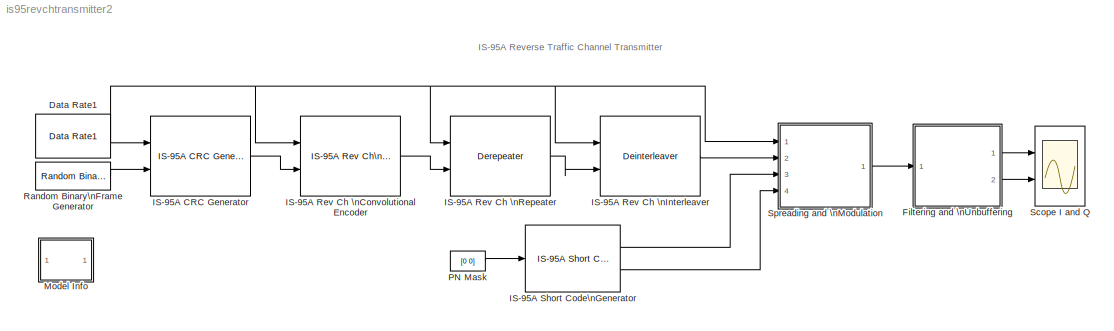
MODEL is95revchtransmitter2
KIND model
CONFIG AbsTol = 1e-6
CONFIG FixedStep = auto
CONFIG MaxStep = auto
CONFIG MinStep = auto
CONFIG RelTol = 1e-3
CONFIG Solver = VariableStepDiscrete
CONFIG SolverMode = SingleTasking
CONFIG StartTime = 0.0
CONFIG StopTime = 0.1
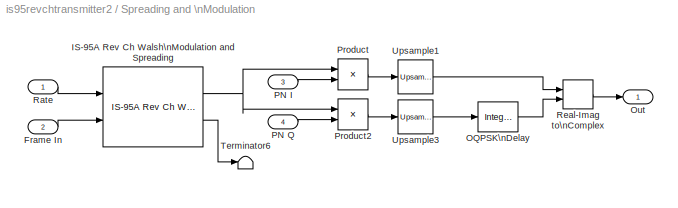
BLOCK [SubSystem]  Spreading and \nModulation
  Ports = [4, 1]
  RTWFcnNameOpts = Auto
  RTWFileNameOpts = Auto
  RTWSystemCode = Auto
  ShowPortLabels = on
  TreatAsAtomicUnit = off
BLOCK [Inport]  Spreading and \nModulation/Frame In
  Interpolate = on
  Port = 2
BLOCK [Reference]  Spreading and \nModulation/IS-95A Rev Ch Walsh\nModulation and Spreading  REF=cdmalibv1p1/IS-95A Mobile Station Transmitter/IS-95A Rev Ch Walsh\nModulation and Spreading  (lib defined in mdl_d5ab24ac8168)
  Ports = [2, 2]
  SourceBlock = cdmalibv1p1/IS-95A Mobile Station Transmitter/IS-95A Rev Ch Walsh\nModulation and Spreading
  SourceType = IS-95A Rev Ch Walsh Modulation and Spreading
  chType = Traffic
  lngCdMask = 1
  sampTime = 1/(50*384)
  wlshOrd = 6
BLOCK [Reference]  Spreading and \nModulation/OQPSK\nDelay  REF=dspsigops/Integer Delay
  Ports = [1, 1]
  SourceBlock = dspsigops/Integer Delay
  SourceType = Integer Delay
  delay = 4
  ic = 0
BLOCK [Outport]  Spreading and \nModulation/Out 
  InitialOutput = []
  OutputWhenDisabled = held
  Port = 1
BLOCK [Inport]  Spreading and \nModulation/PN I
  Interpolate = on
  Port = 3
BLOCK [Inport]  Spreading and \nModulation/PN Q
  Interpolate = on
  Port = 4
BLOCK [Product]  Spreading and \nModulation/Product
  Inputs = 2
  Multiplication = Element-wise(.*)
  Ports = [2, 1]
  SaturateOnIntegerOverflow = on
BLOCK [Product]  Spreading and \nModulation/Product2
  Inputs = 2
  Multiplication = Element-wise(.*)
  Ports = [2, 1]
  SaturateOnIntegerOverflow = on
BLOCK [Inport]  Spreading and \nModulation/Rate
  Interpolate = on
  Port = 1
BLOCK [RealImagToComplex]  Spreading and \nModulation/Real-Imag to\nComplex
  ConstantPart = 0
  Input = RealAndImag
  Ports = [2, 1]
BLOCK [Terminator]  Spreading and \nModulation/Terminator6
BLOCK [Reference]  Spreading and \nModulation/Upsample1  REF=dspsigops/Upsample
  N = 8
  Ports = [1, 1]
  SourceBlock = dspsigops/Upsample
  SourceType = Upsample
  ic = 0
  mode = Maintain input frame rate
  phase = 0
BLOCK [Reference]  Spreading and \nModulation/Upsample3  REF=dspsigops/Upsample
  N = 8
  Ports = [1, 1]
  SourceBlock = dspsigops/Upsample
  SourceType = Upsample
  ic = 0
  mode = Maintain input frame rate
  phase = 0
BLOCK [Reference] Data Rate1  REF=cdmaprivate/Data Rate1  (lib defined in mdl_204704d9dd4c)
  Ports = [0, 1]
  SourceBlock = cdmaprivate/Data Rate1
  SourceType = Mobile Station Transmitter Data Rate
  rate = Full
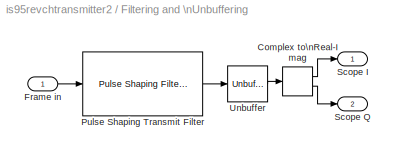
BLOCK [SubSystem] Filtering and \nUnbuffering 
  Ports = [1, 2]
  RTWFcnNameOpts = Auto
  RTWFileNameOpts = Auto
  RTWSystemCode = Auto
  ShowPortLabels = on
  TreatAsAtomicUnit = off
BLOCK [ComplexToRealImag] Filtering and \nUnbuffering /Complex to\nReal-Imag
  Output = RealAndImag
  Ports = [1, 2]
BLOCK [Inport] Filtering and \nUnbuffering /Frame in
  Interpolate = on
  Port = 1
BLOCK [Reference] Filtering and \nUnbuffering /Pulse Shaping Transmit Filter  REF=cdmaprivate/Pulse Shaping Filter\n(h)  (lib defined in mdl_204704d9dd4c)
  N = 1
  Ports = [1, 1]
  SourceBlock = cdmaprivate/Pulse Shaping Filter\n(h)
  SourceType = FIR Pulse Shaping Filter
BLOCK [Outport] Filtering and \nUnbuffering /Scope I
  InitialOutput = []
  OutputWhenDisabled = held
  Port = 1
BLOCK [Outport] Filtering and \nUnbuffering /Scope Q
  InitialOutput = []
  OutputWhenDisabled = held
  Port = 2
BLOCK [Reference] Filtering and \nUnbuffering /Unbuffer  REF=dspbuff3/Unbuffer
  Ports = [1, 1]
  SourceBlock = dspbuff3/Unbuffer
  SourceType = Unbuffer
  ic = 0
BLOCK [Reference] IS-95A CRC Generator  REF=cdmalibv1p1/IS-95A Common/IS-95A CRC Generator  (lib defined in mdl_d5ab24ac8168)
  Ports = [2, 1]
  SourceBlock = cdmalibv1p1/IS-95A Common/IS-95A CRC Generator
  SourceType = IS-95A CRC Generator
  ch_type = Traffic
  rate_set = Rate Set I
BLOCK [Reference] IS-95A Rev Ch \nConvolutional Encoder  REF=cdmalibv1p1/IS-95A Mobile Station Transmitter/IS-95A Rev Ch\nConvolutional Encoder  (lib defined in mdl_d5ab24ac8168)
  Ports = [2, 1]
  SourceBlock = cdmalibv1p1/IS-95A Mobile Station Transmitter/IS-95A Rev Ch\nConvolutional Encoder
  SourceType = IS-95A Rev Ch Convolutional Encoder
  ch_type = Traffic
  enc_state = []
  rate_set = Rate Set I
BLOCK [Reference] IS-95A Rev Ch \nInterleaver  REF=cdmalibv1p1/IS-95A Mobile Station Transmitter/IS-95A Rev Ch\nInterleaver//Deinterleaver  (lib defined in mdl_d5ab24ac8168)
  Ports = [2, 1]
  SourceBlock = cdmalibv1p1/IS-95A Mobile Station Transmitter/IS-95A Rev Ch\nInterleaver//Deinterleaver
  SourceType = IS-95A Rev Ch Interleaver/Deinterleaver
  ch_type = Traffic
  int_select = Interleaver
BLOCK [Reference] IS-95A Rev Ch \nRepeater  REF=cdmalibv1p1/IS-95A Mobile Station Transmitter/IS-95A Rev Ch\nRepeater//Derepeater  (lib defined in mdl_d5ab24ac8168)
  Ports = [2, 1]
  SourceBlock = cdmalibv1p1/IS-95A Mobile Station Transmitter/IS-95A Rev Ch\nRepeater//Derepeater
  SourceType = IS-95A Rev Ch Repeater/Derepeater
  ch_type = Traffic
  rep_select = Derepeater
BLOCK [Reference] IS-95A Short Code\nGenerator  REF=cdmalibv1p1/IS-95A Common/IS-95A Short Code\nGenerator  (lib defined in mdl_d5ab24ac8168)
  Ports = [1, 2]
  SourceBlock = cdmalibv1p1/IS-95A Common/IS-95A Short Code\nGenerator
  SourceType = IS-95A Short Code Generator
  numOut = 64
  sampTime = 1/(50*384)
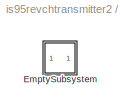
BLOCK [SubSystem] Model Info
  CopyFcn = slcm CopyBlock;
  DeleteFcn = slcm Cancel;
  InitFcn = slcm('UpdateAllCMBlocksInThisModelInit')
  LoadFcn = slcm LoadBlock;
  MaskCallbackString = ||||||||||||||||||||||||||||||
  MaskDescription = This block allows revision control information to be displayed within the model.
  MaskDisplay = text(str2num(LeftAlignmentValue), 0.5, MaskDisplayString, 'HorizontalAlignment', HorizontalTextAlignment)\n
  MaskEnableString = on,on,on,on,on,on,on,on,on,on,on,on,on,on,on,on,on,on,on,on,on,on,on,on,on,on,on,on,on,on,on
  MaskIconFrame = on
  MaskIconOpaque = on
  MaskIconRotate = none
  MaskIconUnits = normalized
  MaskPromptString = InitialSaveTempField|InitialBlockCM|BlockCM|Frame|SaveTempField|DisplayStringWithTags|MaskDisplayString|HorizontalTextAlignment|LeftAlignmentValue|SourceBlockDiagram|TagMaxNumber|CMTag1|CMTag2|CMTag3|CMTag4|CMTag5|CMTag6|CMTag7|CMTag8|CMTag9|CMTag10|CMTag11|CMTag12|CMTag13|CMTag14|CMTag15|CMTag16|CMTag17|CMTag18|CMTag19|CMTag20
  MaskSelfModifiable = on
  MaskStyleString = edit,edit,edit,edit,edit,edit,edit,edit,edit,edit,edit,edit,edit,edit,edit,edit,edit,edit,edit,edit,edit,edit,edit,edit,edit,edit,edit,edit,edit,edit,edit
  MaskToolTipString = on,on,on,on,on,on,on,on,on,on,on,on,on,on,on,on,on,on,on,on,on,on,on,on,on,on,on,on,on,on,on
  MaskTunableValueString = on,on,on,on,on,on,on,on,on,on,on,on,on,on,on,on,on,on,on,on,on,on,on,on,on,on,on,on,on,on,on
  MaskType = CMBlock
  MaskValueString = |none|none|on||Info|Info|Center|0.5|is95revchtransmitter2|20||||||||||||||||||||
  MaskVariableAliases = ,,,,,,,,,,,,,,,,,,,,,,,,,,,,,,
  MaskVariables = InitialSaveTempField=&1;InitialBlockCM=&2;BlockCM=&3;Frame=&4;SaveTempField=&5;DisplayStringWithTags=&6;MaskDisplayString=&7;HorizontalTextAlignment=&8;LeftAlignmentValue=&9;SourceBlockDiagram=&10;TagMaxNumber=@11;CMTag1=&12;CMTag2=&13;CMTag3=&14;CMTag4=&15;CMTag5=&16;CMTag6=&17;CMTag7=&18;CMTag8=&19;CMTag9=&20;CMTag10=&21;CMTag11=&22;CMTag12=&23;CMTag13=&24;CMTag14=&25;CMTag15=&26;CMTag16=&27;CMT...<+45ch>
  MaskVisibilityString = off,off,off,off,off,off,off,off,off,off,off,off,off,off,off,off,off,off,off,off,off,off,off,off,off,off,off,off,off,off,off
  NameChangeFcn = slcm Rename;
  OpenFcn = cdmademohelp;
  Ports = []
  PostSaveFcn = slcm('UpdateAllCMBlocksInThisModel')
  RTWFcnNameOpts = Auto
  RTWFileNameOpts = Auto
  RTWSystemCode = Auto
  ShowPortLabels = on
  TreatAsAtomicUnit = off
BLOCK [SubSystem] Model Info/EmptySubsystem
  Ports = []
  RTWFcnNameOpts = Auto
  RTWFileNameOpts = Auto
  RTWSystemCode = Auto
  ShowPortLabels = on
  TreatAsAtomicUnit = off
BLOCK [Constant] PN Mask
  Value = [0 0]
  VectorParams1D = on
BLOCK [Reference] Random Binary\nFrame Generator  REF=cdmaprivate/Random Binary\nFrame Generator  (lib defined in mdl_204704d9dd4c)
  N = 268
  Ports = [0, 1]
  SourceBlock = cdmaprivate/Random Binary\nFrame Generator
  SourceType = Random Binary Frame Generator
  Ts = 1/(50*268)
  seed = 119940
BLOCK [Scope] Scope I and Q
  DataFormat = Array
  Decimation = 1
  Floating = off
  Grid = on
  LimitDataPoints = on
  MaxDataPoints = 5000
  NumInputPorts = 2
  Ports = [2]
  SampleInput = off
  SampleTime = 0
  SaveName = ScopeData
  SaveToWorkspace = off
  TickLabels = on
  TimeRange = 0.0001
  YMax = 2~2
  YMin = -2~-2
  ZoomMode = yonly
LINE  Spreading and \nModulation/Frame In:1 ->  Spreading and \nModulation/IS-95A Rev Ch Walsh\nModulation and Spreading:2
NET  Spreading and \nModulation/IS-95A Rev Ch Walsh\nModulation and Spreading:1 ->  Spreading and \nModulation/Product2:1,  Spreading and \nModulation/Product:1
LINE  Spreading and \nModulation/IS-95A Rev Ch Walsh\nModulation and Spreading:2 ->  Spreading and \nModulation/Terminator6:1
LINE  Spreading and \nModulation/OQPSK\nDelay:1 ->  Spreading and \nModulation/Real-Imag to\nComplex:2
LINE  Spreading and \nModulation/PN I:1 ->  Spreading and \nModulation/Product:2
LINE  Spreading and \nModulation/PN Q:1 ->  Spreading and \nModulation/Product2:2
LINE  Spreading and \nModulation/Product2:1 ->  Spreading and \nModulation/Upsample3:1
LINE  Spreading and \nModulation/Product:1 ->  Spreading and \nModulation/Upsample1:1
LINE  Spreading and \nModulation/Rate:1 ->  Spreading and \nModulation/IS-95A Rev Ch Walsh\nModulation and Spreading:1
LINE  Spreading and \nModulation/Real-Imag to\nComplex:1 ->  Spreading and \nModulation/Out :1
LINE  Spreading and \nModulation/Upsample1:1 ->  Spreading and \nModulation/Real-Imag to\nComplex:1
LINE  Spreading and \nModulation/Upsample3:1 ->  Spreading and \nModulation/OQPSK\nDelay:1
LINE  Spreading and \nModulation:1 -> Filtering and \nUnbuffering :1
NET Data Rate1:1 ->  Spreading and \nModulation:1, IS-95A CRC Generator:1, IS-95A Rev Ch \nConvolutional Encoder:1, IS-95A Rev Ch \nInterleaver:1, IS-95A Rev Ch \nRepeater:1
LINE Filtering and \nUnbuffering /Complex to\nReal-Imag:1 -> Filtering and \nUnbuffering /Scope I:1
LINE Filtering and \nUnbuffering /Complex to\nReal-Imag:2 -> Filtering and \nUnbuffering /Scope Q:1
LINE Filtering and \nUnbuffering /Frame in:1 -> Filtering and \nUnbuffering /Pulse Shaping Transmit Filter:1
LINE Filtering and \nUnbuffering /Pulse Shaping Transmit Filter:1 -> Filtering and \nUnbuffering /Unbuffer:1
LINE Filtering and \nUnbuffering /Unbuffer:1 -> Filtering and \nUnbuffering /Complex to\nReal-Imag:1
LINE Filtering and \nUnbuffering :1 -> Scope I and Q:1
LINE Filtering and \nUnbuffering :2 -> Scope I and Q:2
LINE IS-95A CRC Generator:1 -> IS-95A Rev Ch \nConvolutional Encoder:2
LINE IS-95A Rev Ch \nConvolutional Encoder:1 -> IS-95A Rev Ch \nRepeater:2
LINE IS-95A Rev Ch \nInterleaver:1 ->  Spreading and \nModulation:2
LINE IS-95A Rev Ch \nRepeater:1 -> IS-95A Rev Ch \nInterleaver:2
LINE IS-95A Short Code\nGenerator:1 ->  Spreading and \nModulation:3
LINE IS-95A Short Code\nGenerator:2 ->  Spreading and \nModulation:4
LINE PN Mask:1 -> IS-95A Short Code\nGenerator:1
LINE Random Binary\nFrame Generator:1 -> IS-95A CRC Generator:2
note: NET lines group one-source signal fan-out (src -> all destinations, sorted); 1:1 wires keep LINE
